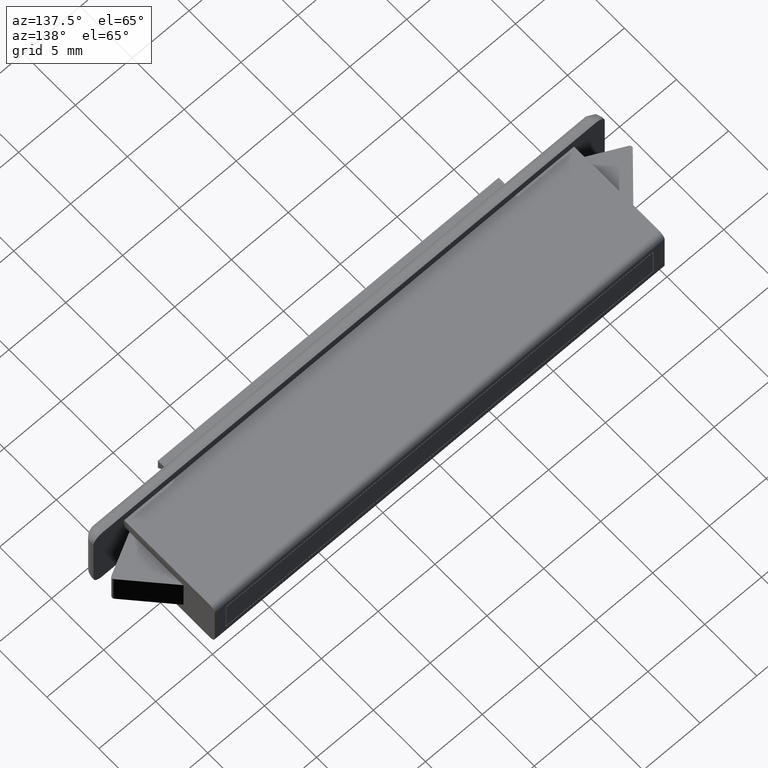
[diagram: clean part render]
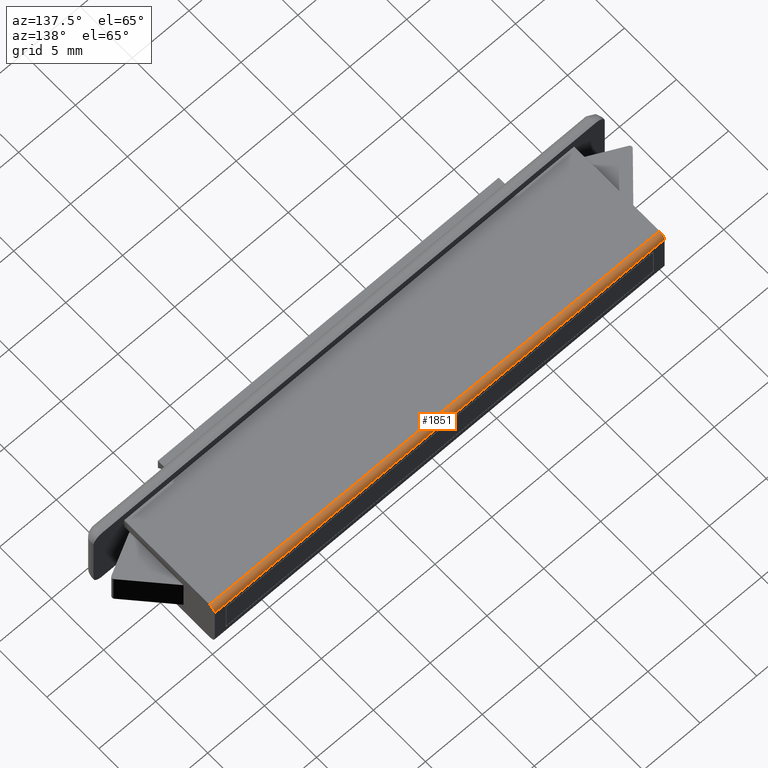
[diagram: same view with one face highlighted and labeled with its STEP entity id]
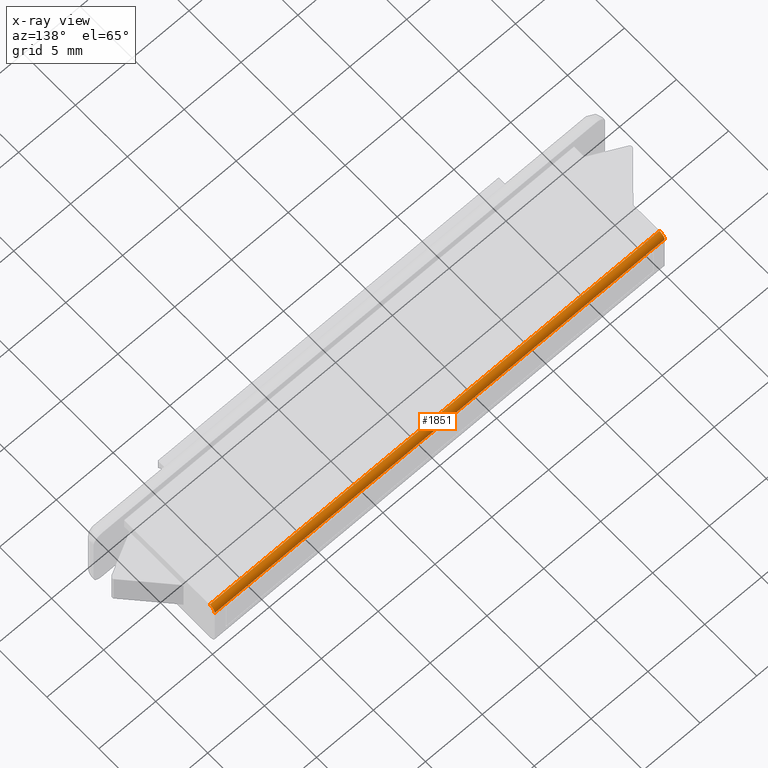
[diagram: x-ray of the same camera — body ghosted, the highlighted face saturated]
A machine part, auxiliary view. The second image highlights one B-rep face of the part: STEP entity #1851.
The next image is the same camera in x-ray: the body ghosted, the highlighted face saturated — about 0% of this face is hidden behind the body in this view.
In plain terms, the highlighted face is a freeform B-spline surface patch.
Its self-contained STEP definition (entity closure, byte-faithful):
#1185=CARTESIAN_POINT('',(19.800000000000001,-0.500000000000000,2.475000000000000));
#1186=VERTEX_POINT('',#1185);
#1194=CARTESIAN_POINT('',(-19.800000000000001,-0.500000000000000,2.475000000000000));
#1195=VERTEX_POINT('',#1194);
#1196=CARTESIAN_POINT('',(19.800000000000001,-0.500000000000000,2.475000000000000));
#1197=CARTESIAN_POINT('',(-19.800000000000001,-0.500000000000000,2.475000000000000));
#1198=QUASI_UNIFORM_CURVE('',1,(#1196,#1197),.UNSPECIFIED.,.F.,.U.);
#1199=EDGE_CURVE('',#1186,#1195,#1198,.T.);
#1799=CARTESIAN_POINT('',(-20.790000000000010,-0.513088474153937,2.474828662487778));
#1800=CARTESIAN_POINT('',(20.814750000000000,-0.513088474153937,2.474828662487778));
#1801=CARTESIAN_POINT('',(-20.790000000000010,0.037492400277359,2.489246130083131));
#1802=CARTESIAN_POINT('',(20.814749999999997,0.037492400277359,2.489246130083131));
#1803=CARTESIAN_POINT('',(-20.790000000000006,-0.001237760309596,1.939839962187008));
#1804=CARTESIAN_POINT('',(20.814750000000000,-0.001237760309596,1.939839962187008));
#1812=(BOUNDED_SURFACE()B_SPLINE_SURFACE(1,2,((#1799,#1801,#1803),(#1800,#1802,#1804)),.UNSPECIFIED.,.F.,.F.,.U.)B_SPLINE_SURFACE_WITH_KNOTS((2,2),(3,3),(0.0,41.604750000000017),(0.0,0.994518632334191),.UNSPECIFIED.)GEOMETRIC_REPRESENTATION_ITEM()RATIONAL_B_SPLINE_SURFACE(((1.0,0.670944223154768,0.996392648609106),(1.0,0.670944223154768,0.996392648609106)))REPRESENTATION_ITEM('')SURFACE());
#1813=CARTESIAN_POINT('',(-19.800000000000001,0.0,1.975000000000000));
#1814=VERTEX_POINT('',#1813);
#1815=CARTESIAN_POINT('',(-19.800000000000001,-0.500000000000000,2.475000000000000));
#1816=CARTESIAN_POINT('',(-19.799999999999997,0.0,2.475000000000000));
#1817=CARTESIAN_POINT('',(-19.800000000000001,0.0,1.975000000000000));
#1825=(BOUNDED_CURVE()B_SPLINE_CURVE(2,(#1815,#1816,#1817),.UNSPECIFIED.,.F.,.U.)CURVE()GEOMETRIC_REPRESENTATION_ITEM()QUASI_UNIFORM_CURVE()RATIONAL_B_SPLINE_CURVE((1.0,0.707106781186548,1.0))REPRESENTATION_ITEM(''));
#1826=EDGE_CURVE('',#1195,#1814,#1825,.T.);
#1827=ORIENTED_EDGE('',*,*,#1826,.F.);
#1828=ORIENTED_EDGE('',*,*,#1199,.F.);
#1829=CARTESIAN_POINT('',(19.800000000000001,0.0,1.975000000000000));
#1830=VERTEX_POINT('',#1829);
#1831=CARTESIAN_POINT('',(19.800000000000001,0.0,1.975000000000000));
#1832=CARTESIAN_POINT('',(19.799999999999997,0.0,2.475000000000000));
#1833=CARTESIAN_POINT('',(19.800000000000001,-0.500000000000000,2.475000000000000));
#1841=(BOUNDED_CURVE()B_SPLINE_CURVE(2,(#1831,#1832,#1833),.UNSPECIFIED.,.F.,.U.)CURVE()GEOMETRIC_REPRESENTATION_ITEM()QUASI_UNIFORM_CURVE()RATIONAL_B_SPLINE_CURVE((1.0,0.707106781186548,1.0))REPRESENTATION_ITEM(''));
#1842=EDGE_CURVE('',#1830,#1186,#1841,.T.);
#1843=ORIENTED_EDGE('',*,*,#1842,.F.);
#1844=CARTESIAN_POINT('',(-19.800000000000001,0.0,1.975000000000000));
#1845=CARTESIAN_POINT('',(19.800000000000001,0.0,1.975000000000000));
#1846=QUASI_UNIFORM_CURVE('',1,(#1844,#1845),.UNSPECIFIED.,.F.,.U.);
#1847=EDGE_CURVE('',#1814,#1830,#1846,.T.);
#1848=ORIENTED_EDGE('',*,*,#1847,.F.);
#1849=EDGE_LOOP('',(#1827,#1828,#1843,#1848));
#1850=FACE_OUTER_BOUND('',#1849,.T.);
#1851=ADVANCED_FACE('',(#1850),#1812,.T.);